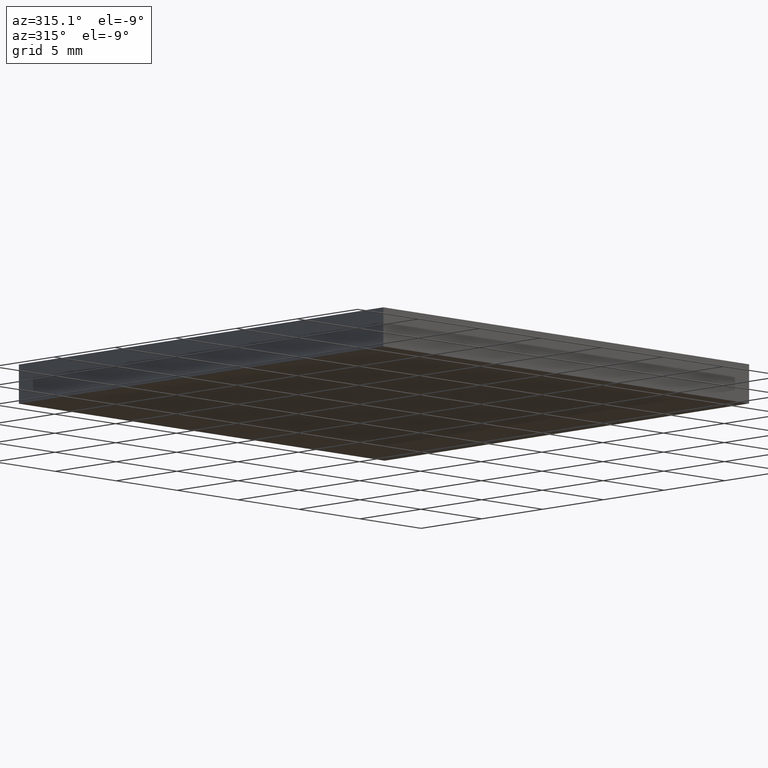
[diagram: clean part render]
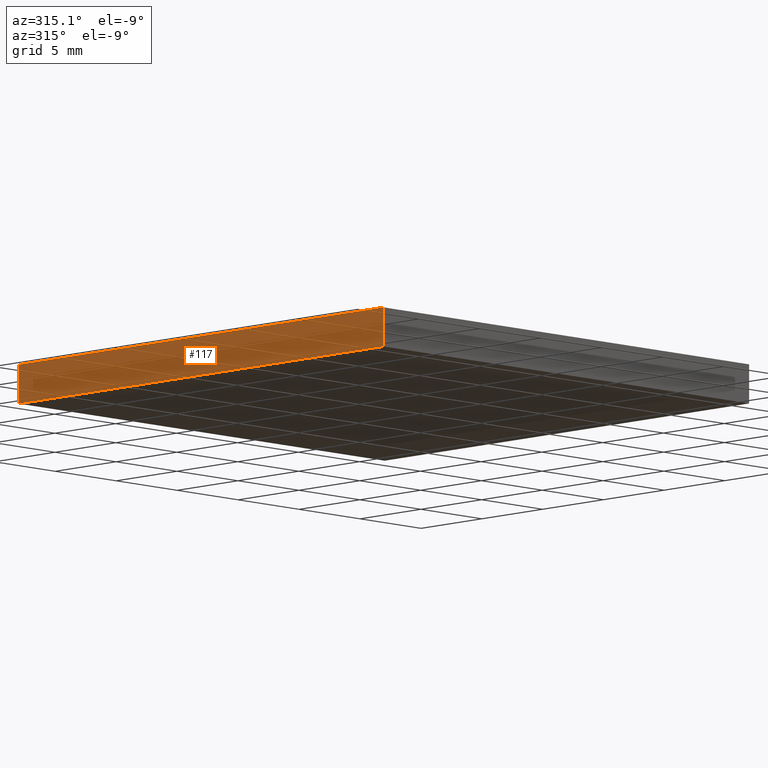
[diagram: same view with one face highlighted and labeled with its STEP entity id]
A machine part, auxiliary view. The second image highlights one B-rep face of the part: STEP entity #117.
In plain terms, the highlighted planar face has unit normal (1, 0, -0).
Its self-contained STEP definition (entity closure, byte-faithful):
#1 = DIRECTION ( 'NONE',  ( 1.000000000000000000, 4.625929269271485900E-016, -0.0000000000000000000 ) ) ;
#5 = FACE_OUTER_BOUND ( 'NONE', #192, .T. ) ;
#15 = DIRECTION ( 'NONE',  ( -0.0000000000000000000, -0.0000000000000000000, -1.000000000000000000 ) ) ;
#16 = CARTESIAN_POINT ( 'NONE',  ( 93.61498394228370000, 46.56324183452659300, 0.0000000000000000000 ) ) ;
#20 = ORIENTED_EDGE ( 'NONE', *, *, #81, .T. ) ;
#38 = VECTOR ( 'NONE', #59, 1000.000000000000000 ) ;
#46 = LINE ( 'NONE', #48, #38 ) ;
#47 = CARTESIAN_POINT ( 'NONE',  ( 93.61498394228368600, 76.56324183452659300, 2.299999999999999800 ) ) ;
#48 = CARTESIAN_POINT ( 'NONE',  ( 93.61498394228368600, 76.56324183452659300, 2.299999999999999800 ) ) ;
#59 = DIRECTION ( 'NONE',  ( 4.625929269271485900E-016, -1.000000000000000000, 0.0000000000000000000 ) ) ;
#61 = VECTOR ( 'NONE', #15, 1000.000000000000000 ) ;
#71 = DIRECTION ( 'NONE',  ( 4.625929269271485900E-016, -1.000000000000000000, 0.0000000000000000000 ) ) ;
#73 = CARTESIAN_POINT ( 'NONE',  ( 93.61498394228370000, 46.56324183452659300, 2.299999999999999800 ) ) ;
#75 = CARTESIAN_POINT ( 'NONE',  ( 93.61498394228368600, 76.56324183452659300, 2.299999999999999800 ) ) ;
#81 = EDGE_CURVE ( 'NONE', #123, #105, #138, .T. ) ;
#91 = VERTEX_POINT ( 'NONE', #16 ) ;
#96 = EDGE_CURVE ( 'NONE', #123, #170, #46, .T. ) ;
#105 = VERTEX_POINT ( 'NONE', #107 ) ;
#107 = CARTESIAN_POINT ( 'NONE',  ( 93.61498394228368600, 76.56324183452659300, 0.0000000000000000000 ) ) ;
#117 = ADVANCED_FACE ( 'NONE', ( #5 ), #118, .F. ) ;
#118 = PLANE ( 'NONE',  #139 ) ;
#119 = CARTESIAN_POINT ( 'NONE',  ( 93.61498394228368600, 76.56324183452659300, 0.0000000000000000000 ) ) ;
#123 = VERTEX_POINT ( 'NONE', #47 ) ;
#137 = EDGE_CURVE ( 'NONE', #105, #91, #167, .T. ) ;
#138 = LINE ( 'NONE', #169, #61 ) ;
#139 = AXIS2_PLACEMENT_3D ( 'NONE', #75, #1, #196 ) ;
#142 = ORIENTED_EDGE ( 'NONE', *, *, #193, .F. ) ;
#149 = ORIENTED_EDGE ( 'NONE', *, *, #137, .T. ) ;
#155 = VECTOR ( 'NONE', #71, 1000.000000000000000 ) ;
#158 = ORIENTED_EDGE ( 'NONE', *, *, #96, .F. ) ;
#163 = DIRECTION ( 'NONE',  ( -0.0000000000000000000, -0.0000000000000000000, -1.000000000000000000 ) ) ;
#167 = LINE ( 'NONE', #119, #155 ) ;
#169 = CARTESIAN_POINT ( 'NONE',  ( 93.61498394228368600, 76.56324183452659300, 2.299999999999999800 ) ) ;
#170 = VERTEX_POINT ( 'NONE', #73 ) ;
#191 = LINE ( 'NONE', #201, #197 ) ;
#192 = EDGE_LOOP ( 'NONE', ( #149, #142, #158, #20 ) ) ;
#193 = EDGE_CURVE ( 'NONE', #170, #91, #191, .T. ) ;
#196 = DIRECTION ( 'NONE',  ( -4.625929269271485900E-016, 1.000000000000000000, 0.0000000000000000000 ) ) ;
#197 = VECTOR ( 'NONE', #163, 1000.000000000000000 ) ;
#201 = CARTESIAN_POINT ( 'NONE',  ( 93.61498394228370000, 46.56324183452659300, 2.299999999999999800 ) ) ;